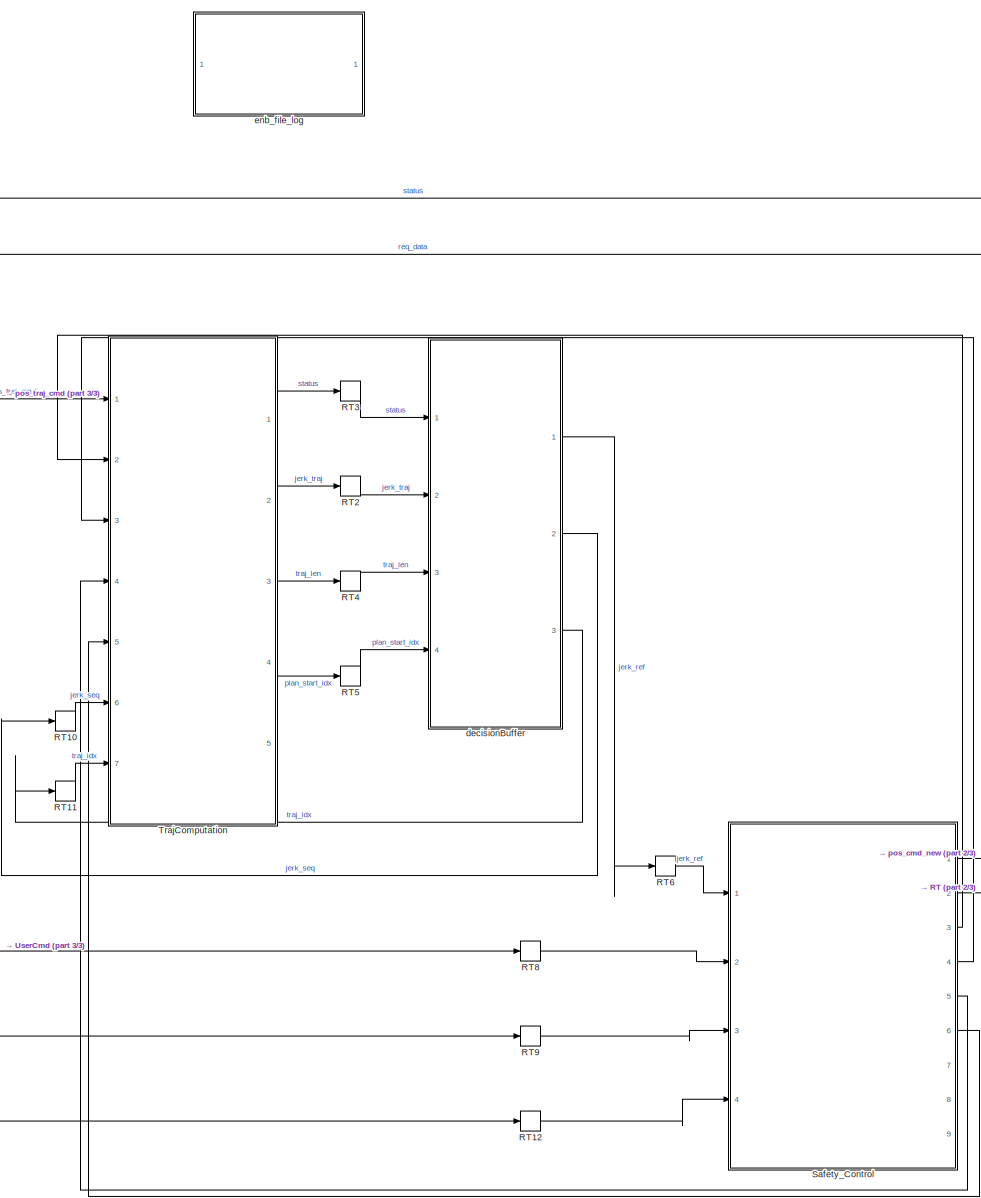
[diagram: root canvas - part 1/3, center side, full height]
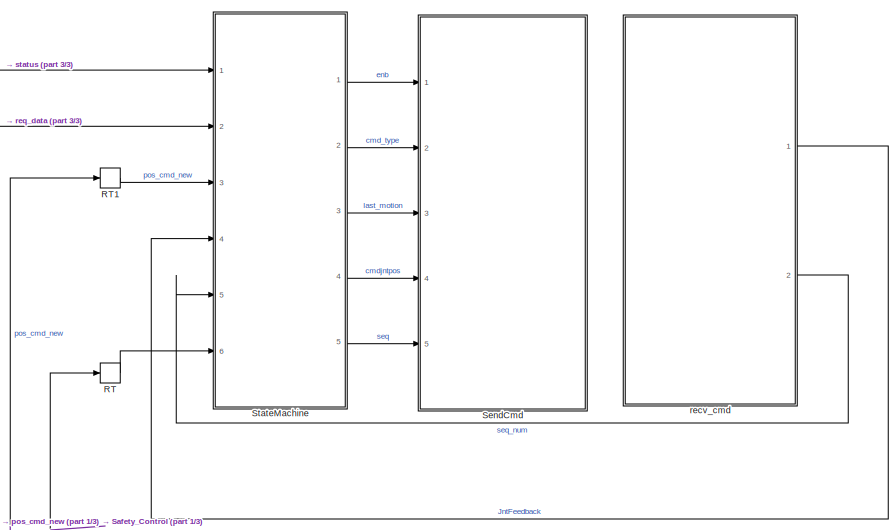
[diagram: root canvas - part 2/3, middle right region]
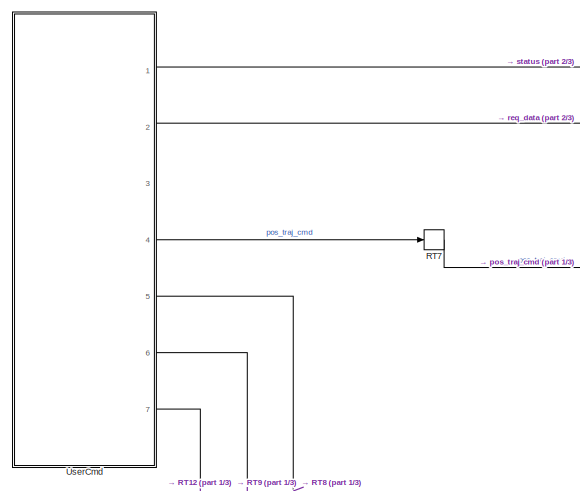
[diagram: root canvas - part 3/3, top left region]
MODEL slx_36506c59c44f
KIND model
CONFIG AbsTol = auto
CONFIG EnableMultiTasking = on
CONFIG FixedStep = Ts
CONFIG InitFcn = Ts = 0.001; % sample time\nTc = 0.008; % controller sample time
CONFIG MaxStep = auto
CONFIG MinStep = auto
CONFIG RelTol = 1e-3
CONFIG SampleTimeConstraint = Unconstrained
CONFIG SolverName = FixedStepAuto
CONFIG StartTime = 0.0
CONFIG StopTime = inf
BLOCK [RateTransition] RT
  Deterministic = off
  OutPortSampleTime = 0.001
BLOCK [RateTransition] RT1
  Deterministic = off
  OutPortSampleTime = 0.001
BLOCK [RateTransition] RT10
  Deterministic = off
  OutPortSampleTime = 0.008
BLOCK [RateTransition] RT11
  Deterministic = off
  OutPortSampleTime = 0.008
BLOCK [RateTransition] RT12
  Deterministic = off
  OutPortSampleTime = 0.008
BLOCK [RateTransition] RT2
  Deterministic = off
  OutPortSampleTime = 0.001
BLOCK [RateTransition] RT3
  Deterministic = off
  OutPortSampleTime = 0.001
BLOCK [RateTransition] RT4
  Deterministic = off
  OutPortSampleTime = 0.001
BLOCK [RateTransition] RT5
  Deterministic = off
  OutPortSampleTime = 0.001
BLOCK [RateTransition] RT6
  Deterministic = off
  OutPortSampleTime = 0.008
BLOCK [RateTransition] RT7
  Deterministic = off
  OutPortSampleTime = 0.008
BLOCK [RateTransition] RT8
  Deterministic = off
  OutPortSampleTime = 0.008
BLOCK [RateTransition] RT9
  Deterministic = off
  OutPortSampleTime = 0.008
BLOCK [ModelReference] Safety_Control
  ModelNameDialog = safety_control.slx
  ModelReferenceVersion = 1.580
  Ports = [4, 9]
BLOCK [ModelReference] SendCmd
  ModelNameDialog = send_cmd.slx
  ModelReferenceVersion = 1.14
  Ports = [5]
BLOCK [ModelReference] StateMachine
  ModelNameDialog = state_machine.slx
  ModelReferenceVersion = 1.87
  Ports = [6, 5]
BLOCK [ModelReference] TrajComputation
  ModelNameDialog = trajectory_computation.slx
  ModelReferenceVersion = 1.226
  Ports = [7, 5]
BLOCK [ModelReference] UserCmd
  ModelNameDialog = user_cmd.slx
  ModelReferenceVersion = 1.25
  Ports = [0, 7]
BLOCK [ModelReference] decisionBuffer
  ModelNameDialog = decision_buffer.slx
  ModelReferenceVersion = 1.204
  Ports = [4, 3]
BLOCK [ModelReference] enb_file_log
  ModelNameDialog = enable_file_log.slx
  ModelReferenceVersion = 1.2
  Ports = []
BLOCK [ModelReference] recv_cmd
  ModelNameDialog = recv_cmd.slx
  ModelReferenceVersion = 1.7
  Ports = [0, 2]
LINE RT10:1 -> TrajComputation:6
LINE RT11:1 -> TrajComputation:7
LINE RT12:1 -> Safety_Control:4
LINE RT1:1 -> StateMachine:3
LINE RT2:1 -> decisionBuffer:2
LINE RT3:1 -> decisionBuffer:1
LINE RT4:1 -> decisionBuffer:3
LINE RT5:1 -> decisionBuffer:4
LINE RT6:1 -> Safety_Control:1
LINE RT7:1 -> TrajComputation:1
LINE RT8:1 -> Safety_Control:2
LINE RT9:1 -> Safety_Control:3
LINE RT:1 -> StateMachine:6
LINE Safety_Control:1 -> RT1:1
LINE Safety_Control:2 -> RT:1
LINE Safety_Control:3 -> TrajComputation:2
LINE Safety_Control:4 -> TrajComputation:3
LINE Safety_Control:5 -> TrajComputation:4
LINE Safety_Control:6 -> TrajComputation:5
LINE StateMachine:1 -> SendCmd:1
LINE StateMachine:2 -> SendCmd:2
LINE StateMachine:3 -> SendCmd:3
LINE StateMachine:4 -> SendCmd:4
LINE StateMachine:5 -> SendCmd:5
LINE TrajComputation:1 -> RT3:1
LINE TrajComputation:2 -> RT2:1
LINE TrajComputation:3 -> RT4:1
LINE TrajComputation:4 -> RT5:1
LINE UserCmd:1 -> StateMachine:1
LINE UserCmd:2 -> StateMachine:2
LINE UserCmd:4 -> RT7:1
LINE UserCmd:5 -> RT8:1
LINE UserCmd:6 -> RT9:1
LINE UserCmd:7 -> RT12:1
LINE decisionBuffer:1 -> RT6:1
LINE decisionBuffer:2 -> RT10:1
LINE decisionBuffer:3 -> RT11:1
LINE recv_cmd:1 -> StateMachine:4
LINE recv_cmd:2 -> StateMachine:5
